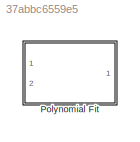
MODEL slx_37abbc6559e5
KIND library
CONFIG AbsTol = auto
CONFIG FixedStep = auto
CONFIG MaxStep = auto
CONFIG MinStep = auto
CONFIG RelTol = 1e-3
CONFIG SampleTimeConstraint = Unconstrained
CONFIG Solver = ode45
CONFIG SolverMode = Auto
CONFIG SolverName = ode45
CONFIG StartTime = 0.0
CONFIG StopTime = 10.0
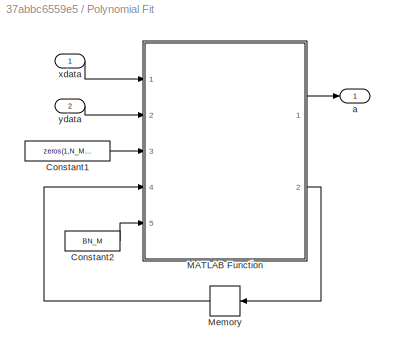
BLOCK [SubSystem] Polynomial Fit
  Ports = [2, 1]
  RequestExecContextInheritance = off
BLOCK [Constant] Polynomial Fit/Constant1
  Value = zeros(1,N_M+1)
BLOCK [Constant] Polynomial Fit/Constant2
  Value = BN_M
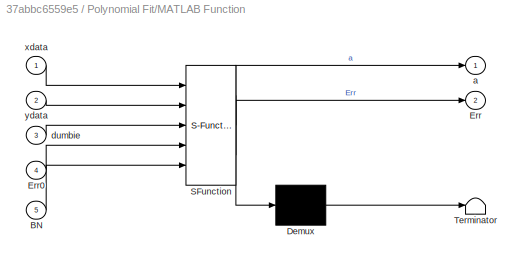
BLOCK [SubSystem] Polynomial Fit/MATLAB Function
  ErrorFcn = Stateflow.Translate.translate
  PermitHierarchicalResolution = ExplicitOnly
  Ports = [5, 2]
  RequestExecContextInheritance = off
  SFBlockType = MATLAB Function
  TreatAsAtomicUnit = on
BLOCK [Demux] Polynomial Fit/MATLAB Function/ Demux 
  Outputs = 1
  Ports = [1, 1]
BLOCK [S-Function] Polynomial Fit/MATLAB Function/ SFunction 
  EnableBusSupport = on
  FunctionName = sf_sfun
  PortCounts = [5 3]
  Ports = [5, 3]
  Tag = Stateflow S-Function lib_GenTools_PolynomialFit 2
BLOCK [Terminator] Polynomial Fit/MATLAB Function/ Terminator 
BLOCK [Inport] Polynomial Fit/MATLAB Function/BN
  IconDisplay = Port number
  Port = 5
BLOCK [Outport] Polynomial Fit/MATLAB Function/Err
  IconDisplay = Port number
  Port = 2
BLOCK [Inport] Polynomial Fit/MATLAB Function/Err0
  IconDisplay = Port number
  Port = 4
BLOCK [Outport] Polynomial Fit/MATLAB Function/a
  IconDisplay = Port number
BLOCK [Inport] Polynomial Fit/MATLAB Function/dumbie
  IconDisplay = Port number
  Port = 3
BLOCK [Inport] Polynomial Fit/MATLAB Function/xdata
  IconDisplay = Port number
BLOCK [Inport] Polynomial Fit/MATLAB Function/ydata
  IconDisplay = Port number
  Port = 2
BLOCK [Memory] Polynomial Fit/Memory
  X0 = zeros(1,11)
BLOCK [Outport] Polynomial Fit/a
  IconDisplay = Port number
BLOCK [Inport] Polynomial Fit/xdata
  IconDisplay = Port number
BLOCK [Inport] Polynomial Fit/ydata
  IconDisplay = Port number
  Port = 2
LINE Polynomial Fit/Constant1:1 -> Polynomial Fit/MATLAB Function:3
LINE Polynomial Fit/Constant2:1 -> Polynomial Fit/MATLAB Function:5
LINE Polynomial Fit/MATLAB Function:1 -> Polynomial Fit/a:1
LINE Polynomial Fit/MATLAB Function:2 -> Polynomial Fit/Memory:1
LINE Polynomial Fit/Memory:1 -> Polynomial Fit/MATLAB Function:4
LINE Polynomial Fit/xdata:1 -> Polynomial Fit/MATLAB Function:1
LINE Polynomial Fit/ydata:1 -> Polynomial Fit/MATLAB Function:2
CHART Polynomial Fit/MATLAB Function states=1 transitions=1
  STATE_LABEL 'eML_blk_kernel()'
  STATE_LABEL "SCRIPT:\nfunction [a,Err] = PolynomialFit(xdata,ydata,dumbie,Err0,BN)\n%#codegen\n\n%Power of the polynomial\nN = length(dumbie)-1;\n\n%Error/Warning Checking \nErr = Err0;\nErrNum = 1;\n%xdata is a 1-D Array\nif min(size(xdata)) ~= 1 && Err(ErrNum) == 0\n    fprintf('Warning in %s: xdata must be a 1-D array\\n',char(BN));\n    Err(ErrNum) = 1;\nend\nErrNum = ErrNum + 1;\n%ydata is a 1-D Array\nif min(size(ydata)) ...<+2112ch>"
